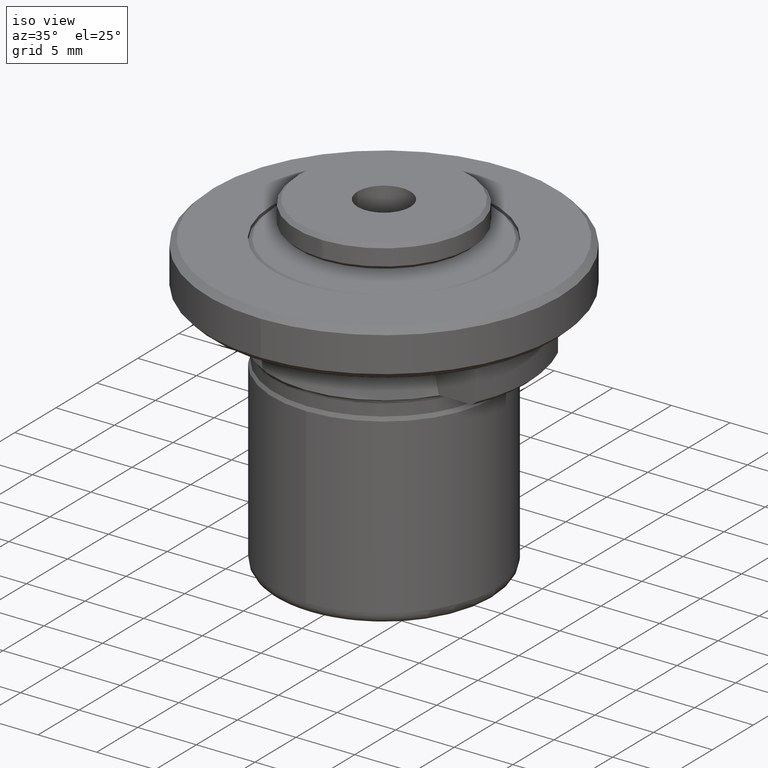
[diagram: clean part render]
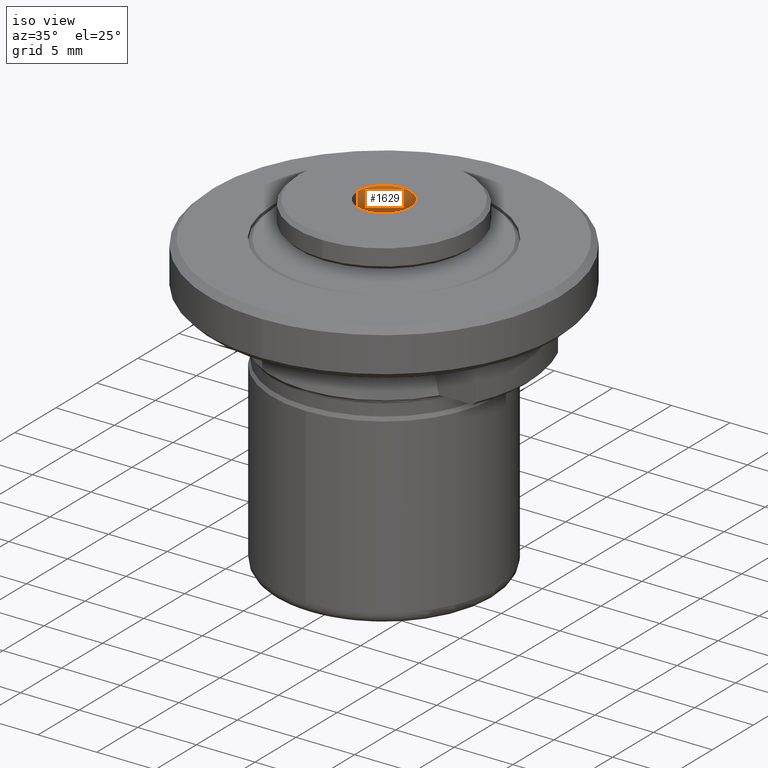
[diagram: same view with one face highlighted and labeled with its STEP entity id]
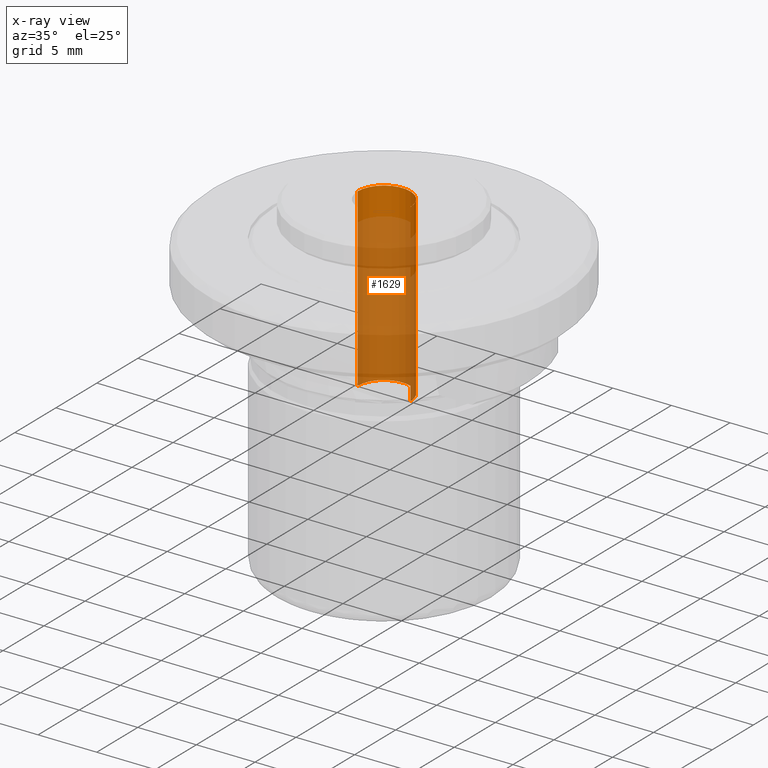
[diagram: x-ray of the same camera — body ghosted, the highlighted face saturated]
A machine part, iso view. The second image highlights one B-rep face of the part: STEP entity #1629.
The next image is the same camera in x-ray: the body ghosted, the highlighted face saturated — about 83% of this face is hidden behind the body in this view.
In plain terms, the highlighted cylindrical surface (edge-blend (fillet) strip) has radius 2.25 mm, axis along (-0, -0, 1).
Its self-contained STEP definition (entity closure, byte-faithful):
#28 = CARTESIAN_POINT ( 'NONE',  ( 2.250000000000000400, 0.0000000000000000000, 0.7500000000000006700 ) ) ;
#74 = CARTESIAN_POINT ( 'NONE',  ( 2.250000000000000000, 0.0000000000000000000, 15.75000000000000000 ) ) ;
#117 = ORIENTED_EDGE ( 'NONE', *, *, #442, .F. ) ;
#195 = DIRECTION ( 'NONE',  ( -0.0000000000000000000, -0.0000000000000000000, 1.000000000000000000 ) ) ;
#219 = VERTEX_POINT ( 'NONE', #1843 ) ;
#264 = EDGE_CURVE ( 'NONE', #1071, #1210, #1082, .T. ) ;
#353 = LINE ( 'NONE', #655, #738 ) ;
#426 = AXIS2_PLACEMENT_3D ( 'NONE', #1199, #195, #1369 ) ;
#442 = EDGE_CURVE ( 'NONE', #219, #1210, #353, .T. ) ;
#548 = AXIS2_PLACEMENT_3D ( 'NONE', #1032, #1934, #1746 ) ;
#655 = CARTESIAN_POINT ( 'NONE',  ( -2.250000000000000400, 2.755455298081544800E-016, 28.35674215500630200 ) ) ;
#684 = DIRECTION ( 'NONE',  ( -0.0000000000000000000, -0.0000000000000000000, 1.000000000000000000 ) ) ;
#733 = EDGE_CURVE ( 'NONE', #848, #1071, #1168, .T. ) ;
#738 = VECTOR ( 'NONE', #2134, 1000.000000000000000 ) ;
#761 = CARTESIAN_POINT ( 'NONE',  ( -2.250000000000000000, 2.755455298081544300E-016, 15.75000000000000000 ) ) ;
#828 = DIRECTION ( 'NONE',  ( -0.0000000000000000000, -0.0000000000000000000, 1.000000000000000000 ) ) ;
#848 = VERTEX_POINT ( 'NONE', #28 ) ;
#882 = ORIENTED_EDGE ( 'NONE', *, *, #264, .T. ) ;
#893 = EDGE_CURVE ( 'NONE', #848, #219, #1120, .T. ) ;
#1032 = CARTESIAN_POINT ( 'NONE',  ( 0.0000000000000000000, 0.0000000000000000000, 15.75000000000000000 ) ) ;
#1071 = VERTEX_POINT ( 'NONE', #74 ) ;
#1077 = EDGE_LOOP ( 'NONE', ( #117, #1081, #1485, #882 ) ) ;
#1081 = ORIENTED_EDGE ( 'NONE', *, *, #893, .F. ) ;
#1082 = CIRCLE ( 'NONE', #548, 2.250000000000000000 ) ;
#1120 = CIRCLE ( 'NONE', #426, 2.250000000000000400 ) ;
#1168 = LINE ( 'NONE', #2000, #1658 ) ;
#1199 = CARTESIAN_POINT ( 'NONE',  ( 0.0000000000000000000, 0.0000000000000000000, 0.7500000000000006700 ) ) ;
#1210 = VERTEX_POINT ( 'NONE', #761 ) ;
#1369 = DIRECTION ( 'NONE',  ( 1.000000000000000000, 0.0000000000000000000, 0.0000000000000000000 ) ) ;
#1485 = ORIENTED_EDGE ( 'NONE', *, *, #733, .T. ) ;
#1522 = CARTESIAN_POINT ( 'NONE',  ( 0.0000000000000000000, 0.0000000000000000000, 28.35674215500630200 ) ) ;
#1607 = FACE_OUTER_BOUND ( 'NONE', #1077, .T. ) ;
#1623 = DIRECTION ( 'NONE',  ( 1.000000000000000000, 0.0000000000000000000, 0.0000000000000000000 ) ) ;
#1629 = ADVANCED_FACE ( 'NONE', ( #1607 ), #1954, .F. ) ;
#1658 = VECTOR ( 'NONE', #828, 1000.000000000000000 ) ;
#1746 = DIRECTION ( 'NONE',  ( 1.000000000000000000, 0.0000000000000000000, 0.0000000000000000000 ) ) ;
#1843 = CARTESIAN_POINT ( 'NONE',  ( -2.250000000000000400, 2.755455298081544800E-016, 0.7500000000000006700 ) ) ;
#1934 = DIRECTION ( 'NONE',  ( -0.0000000000000000000, -0.0000000000000000000, 1.000000000000000000 ) ) ;
#1954 = CYLINDRICAL_SURFACE ( 'NONE', #2152, 2.250000000000000400 ) ;
#2000 = CARTESIAN_POINT ( 'NONE',  ( 2.250000000000000400, 0.0000000000000000000, 28.35674215500630200 ) ) ;
#2134 = DIRECTION ( 'NONE',  ( -0.0000000000000000000, -0.0000000000000000000, 1.000000000000000000 ) ) ;
#2152 = AXIS2_PLACEMENT_3D ( 'NONE', #1522, #684, #1623 ) ;